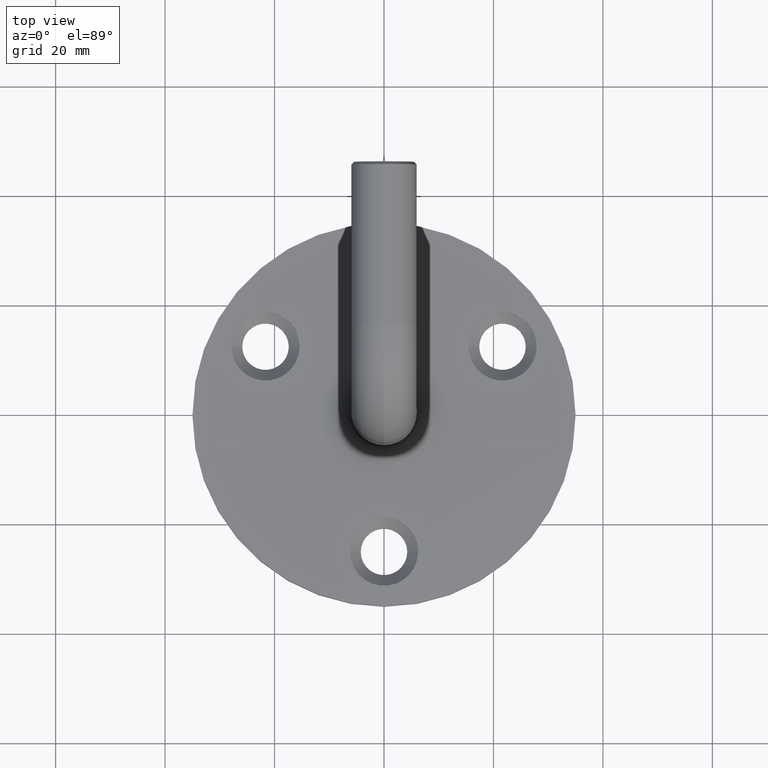
[diagram: clean part render]
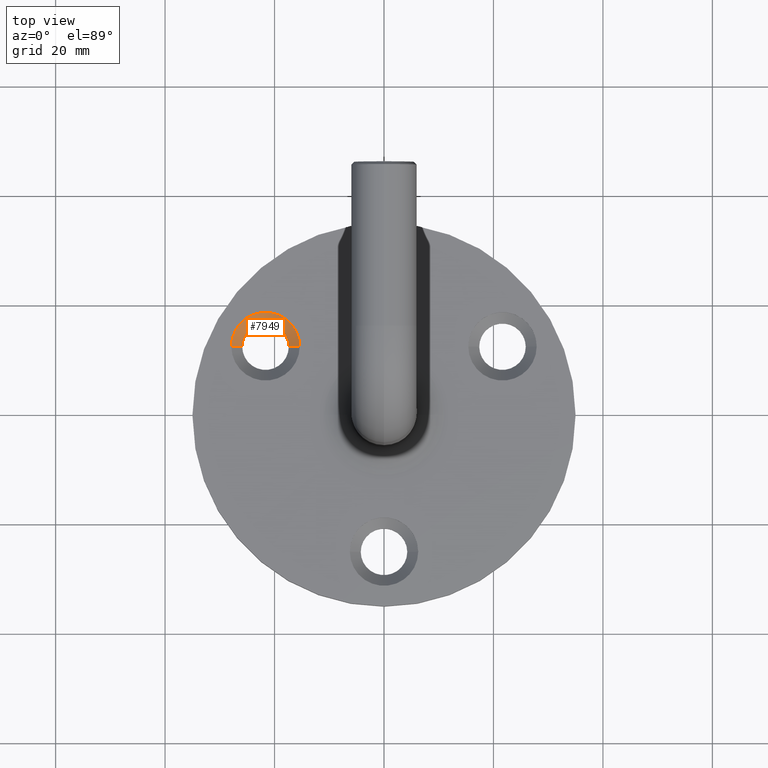
[diagram: same view with one face highlighted and labeled with its STEP entity id]
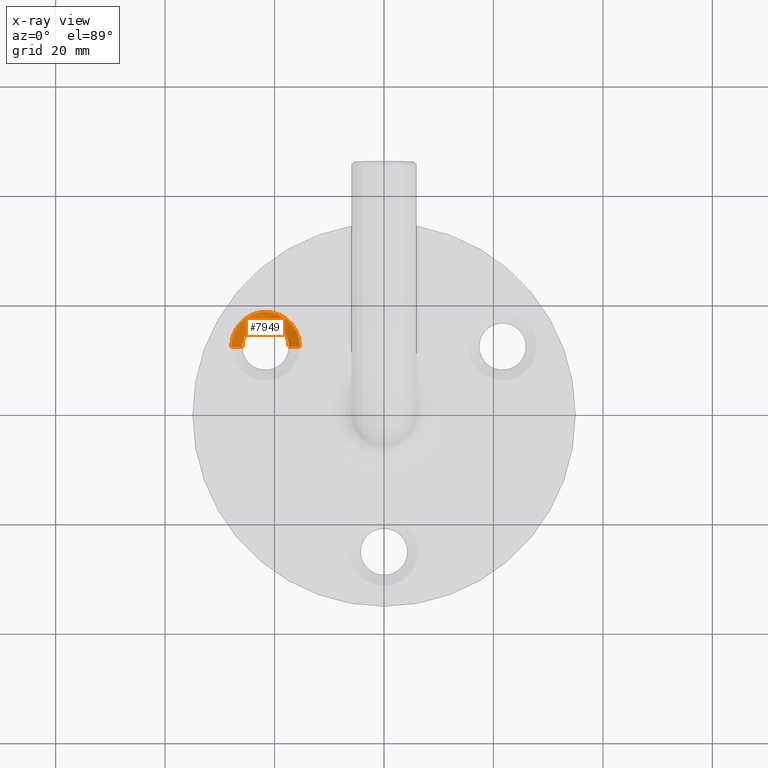
[diagram: x-ray of the same camera — body ghosted, the highlighted face saturated]
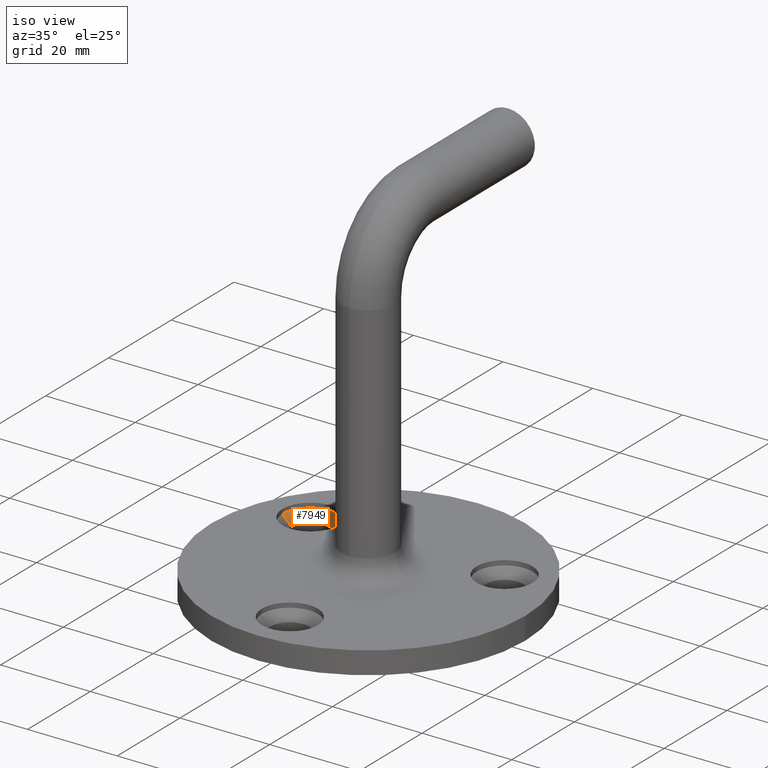
[diagram: same view with one face highlighted and labeled with its STEP entity id]
A machine part, top view. The second image highlights one B-rep face of the part: STEP entity #7949.
The next image is the same camera in x-ray: the body ghosted, the highlighted face saturated — about 0% of this face is hidden behind the body in this view.
A second angle (iso view) of the same face is appended — the face is thin or edge-on in the first view.
In plain terms, the highlighted conical surface has half-angle 45 deg.
Its self-contained STEP definition (entity closure, byte-faithful):
#26 = VERTEX_POINT ( 'NONE', #3249 ) ;
#382 = DIRECTION ( 'NONE',  ( -0.7071067811865441310, 8.659560562354890950E-17, 0.7071067811865510144 ) ) ;
#434 = AXIS2_PLACEMENT_3D ( 'NONE', #8696, #9910, #7379 ) ;
#1256 = CARTESIAN_POINT ( 'NONE',  ( -21.65063509461100111, 12.49999999999994138, 1.949999999999964428 ) ) ;
#1327 = VERTEX_POINT ( 'NONE', #10837 ) ;
#1704 = EDGE_LOOP ( 'NONE', ( #5933, #5955, #3555, #13052 ) ) ;
#2900 = CARTESIAN_POINT ( 'NONE',  ( -25.90063509461099756, 12.49999999999994138, 1.949999999999964428 ) ) ;
#2980 = CONICAL_SURFACE ( 'NONE', #434, 4.249999999999996447, 0.7853981633974433940 ) ;
#3130 = DIRECTION ( 'NONE',  ( -0.000000000000000000, -0.000000000000000000, -1.000000000000000000 ) ) ;
#3249 = CARTESIAN_POINT ( 'NONE',  ( -15.40063509461099933, 12.49999999999994138, 3.949999999999986411 ) ) ;
#3555 = ORIENTED_EDGE ( 'NONE', *, *, #4058, .T. ) ;
#3560 = FACE_OUTER_BOUND ( 'NONE', #1704, .T. ) ;
#4058 = EDGE_CURVE ( 'NONE', #15096, #26, #14612, .T. ) ;
#5255 = CIRCLE ( 'NONE', #11869, 6.250000000000001776 ) ;
#5735 = EDGE_CURVE ( 'NONE', #15096, #1327, #12728, .T. ) ;
#5806 = VECTOR ( 'NONE', #382, 999.9999999999998863 ) ;
#5883 = DIRECTION ( 'NONE',  ( 0.7071067811865441310, 0.000000000000000000, 0.7071067811865510144 ) ) ;
#5933 = ORIENTED_EDGE ( 'NONE', *, *, #15469, .F. ) ;
#5955 = ORIENTED_EDGE ( 'NONE', *, *, #5735, .F. ) ;
#7379 = DIRECTION ( 'NONE',  ( 1.000000000000000000, 0.000000000000000000, 0.000000000000000000 ) ) ;
#7949 = ADVANCED_FACE ( 'NONE', ( #3560 ), #2980, .F. ) ;
#8444 = CARTESIAN_POINT ( 'NONE',  ( -17.40063509461100466, 12.49999999999994138, 1.949999999999964428 ) ) ;
#8696 = CARTESIAN_POINT ( 'NONE',  ( -21.65063509461100111, 12.49999999999994138, 1.949999999999964428 ) ) ;
#8759 = VERTEX_POINT ( 'NONE', #14151 ) ;
#8935 = VECTOR ( 'NONE', #5883, 999.9999999999998863 ) ;
#9035 = LINE ( 'NONE', #2900, #5806 ) ;
#9179 = CARTESIAN_POINT ( 'NONE',  ( -21.65063509461100111, 12.49999999999994138, 3.949999999999986411 ) ) ;
#9499 = AXIS2_PLACEMENT_3D ( 'NONE', #1256, #12204, #12308 ) ;
#9910 = DIRECTION ( 'NONE',  ( 0.000000000000000000, 0.000000000000000000, 1.000000000000000000 ) ) ;
#10348 = DIRECTION ( 'NONE',  ( 1.000000000000000000, 0.000000000000000000, 0.000000000000000000 ) ) ;
#10837 = CARTESIAN_POINT ( 'NONE',  ( -25.90063509461099756, 12.49999999999994138, 1.949999999999964428 ) ) ;
#11093 = CARTESIAN_POINT ( 'NONE',  ( -17.40063509461100466, 12.49999999999994138, 1.949999999999964428 ) ) ;
#11349 = EDGE_CURVE ( 'NONE', #8759, #26, #5255, .T. ) ;
#11869 = AXIS2_PLACEMENT_3D ( 'NONE', #9179, #3130, #10348 ) ;
#12204 = DIRECTION ( 'NONE',  ( 0.000000000000000000, 0.000000000000000000, 1.000000000000000000 ) ) ;
#12308 = DIRECTION ( 'NONE',  ( 1.000000000000000000, 0.000000000000000000, 0.000000000000000000 ) ) ;
#12728 = CIRCLE ( 'NONE', #9499, 4.249999999999996447 ) ;
#13052 = ORIENTED_EDGE ( 'NONE', *, *, #11349, .F. ) ;
#14151 = CARTESIAN_POINT ( 'NONE',  ( -27.90063509461100466, 12.49999999999994138, 3.949999999999986411 ) ) ;
#14612 = LINE ( 'NONE', #8444, #8935 ) ;
#15096 = VERTEX_POINT ( 'NONE', #11093 ) ;
#15469 = EDGE_CURVE ( 'NONE', #1327, #8759, #9035, .T. ) ;